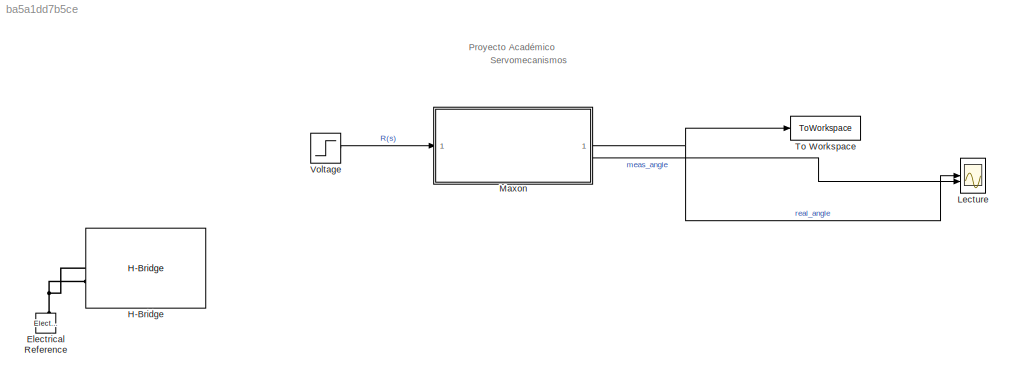
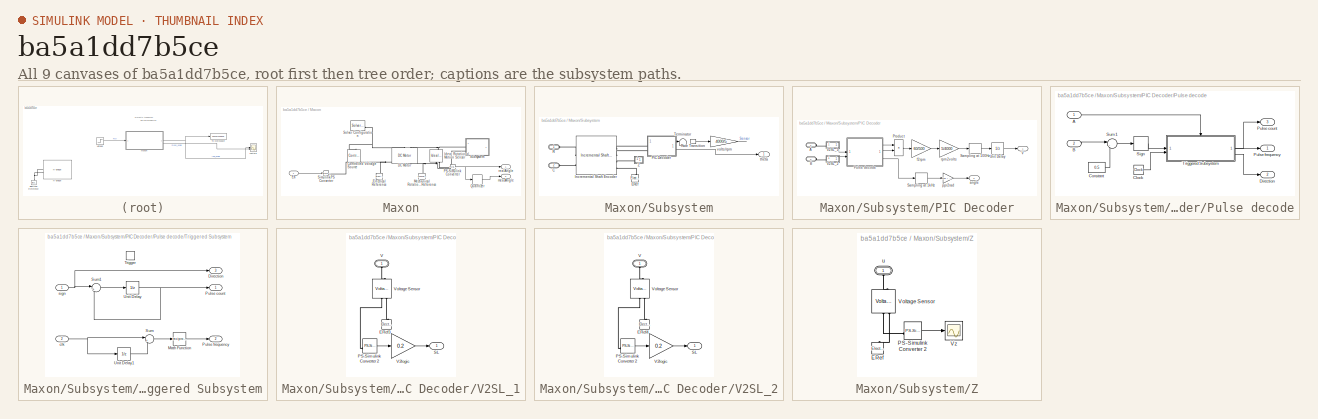
[diagram: thumbnail index - all 9 canvases of the model, root first then tree order]
MODEL slx_ba5a1dd7b5ce
KIND model
CONFIG AbsTol = auto
CONFIG EnableMultiTasking = off
CONFIG FixedStep = auto
CONFIG MaxStep = auto
CONFIG MinStep = auto
CONFIG RelTol = 1e-3
CONFIG SampleTimeConstraint = Unconstrained
CONFIG SolverName = VariableStepAuto
CONFIG StartTime = 0.0
CONFIG StopTime = 0.5
BLOCK [Reference] Electrical Reference  REF=fl_lib/Electrical/Electrical Elements/Electrical Reference
  Commented = on
  NameLocation = right
  SourceBlock = fl_lib/Electrical/Electrical Elements/Electrical Reference
  SourceType = Electrical Reference
BLOCK [Reference] H-Bridge  REF=ee_lib/Semiconductors &
Converters/Converters/H-Bridge
  Commented = on
  SourceBlock = ee_lib/Semiconductors &\nConverters/Converters/H-Bridge
  SourceType = H-Bridge
BLOCK [Scope] Lecture
  ActiveDisplayYMaximum = 74.098189046829177
  ActiveDisplayYMinimum = 72.021268968643184
  Floating = off
  GraphicalSettings = {"AxesScalingProperties":{"AlignXAxis":"Center","AlignYAxis":"Center","AutoScaleXAxisLimits":false,"AxesScaling":"Manual","AxesScalingNumUpdates":10,"ExpandOnly":true,"ScaleAxesLimitsAtStop":false,"XAxisDataRange":100,"YAxisDataRange":80},"Cursors":{"CursorChannels":["auto","auto"],"Enabled":false,"Horizontal":true,"LinkToWaveform":true,"LockSpacing":false,"ShowMeasurement":true,"ShowPanel":false,...<+2459ch>
  LayoutDimensionsString = [1,1]
  MultipleDisplayCache = [{"MaxYLimMag":160.074,"MaxYLimReal":74.098189046829177,"MinYLimMag":0,"MinYLimReal":72.021268968643184,"PlotAsMagnitudePhase":false,"ShowGrid":true,"ShowLegend":true,"Title":"%<SignalLabel>","YLabel":""}]
  NumInputPorts = 2
  ScopeFrameLocation = window
  ShowLegend = on
  WasSavedAsWebScope = on
  WindowPosition = [1.000000,1.000000,1512.000000,916.000000,]
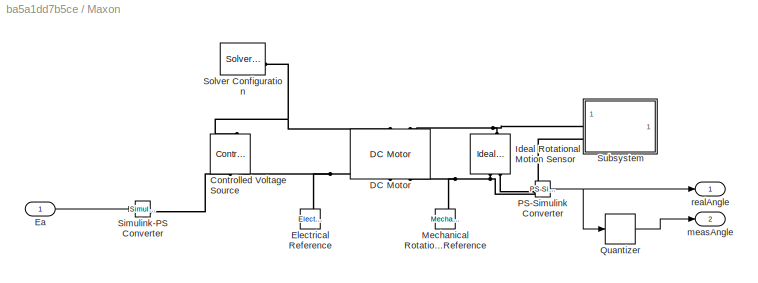
BLOCK [SubSystem] Maxon
BLOCK [Reference] Maxon/Controlled Voltage Source  REF=fl_lib/Electrical/Electrical Sources/Controlled Voltage
Source
  NameLocation = right
  SourceBlock = fl_lib/Electrical/Electrical Sources/Controlled Voltage\nSource
  SourceType = Controlled Voltage\nSource
BLOCK [Reference] Maxon/DC Motor  REF=ee_lib/Electromechanical/Brushed Motors/DC Motor
  NameLocation = right
  SourceBlock = ee_lib/Electromechanical/Brushed Motors/DC Motor
  SourceType = DC Motor
BLOCK [Inport] Maxon/Ea
BLOCK [Reference] Maxon/Electrical Reference  REF=fl_lib/Electrical/Electrical Elements/Electrical Reference
  NameLocation = right
  SourceBlock = fl_lib/Electrical/Electrical Elements/Electrical Reference
  SourceType = Electrical Reference
BLOCK [Reference] Maxon/Ideal Rotational Motion Sensor  REF=fl_lib/Mechanical/Mechanical Sensors/Ideal Rotational
Motion Sensor
  NameLocation = right
  SourceBlock = fl_lib/Mechanical/Mechanical Sensors/Ideal Rotational\nMotion Sensor
  SourceType = Ideal Rotational\nMotion Sensor
BLOCK [Reference] Maxon/Mechanical Rotational Reference  REF=fl_lib/Mechanical/Rotational Elements/Mechanical
Rotational Reference
  NameLocation = right
  SourceBlock = fl_lib/Mechanical/Rotational Elements/Mechanical\nRotational Reference
  SourceType = Mechanical\nRotational Reference
BLOCK [Reference] Maxon/PS-Simulink Converter  REF=nesl_utility/PS-Simulink
Converter
  SourceBlock = nesl_utility/PS-Simulink\nConverter
  SourceType = PS-Simulink\nConverter
BLOCK [Quantizer] Maxon/Quantizer
  QuantizationInterval = 1e-3
BLOCK [Reference] Maxon/Simulink-PS Converter  REF=nesl_utility/Simulink-PS
Converter
  SourceBlock = nesl_utility/Simulink-PS\nConverter
  SourceType = Simulink-PS\nConverter
BLOCK [Reference] Maxon/Solver Configuration  REF=nesl_utility/Solver
Configuration
  SourceBlock = nesl_utility/Solver\nConfiguration
  SourceType = Solver\nConfiguration
BLOCK [SubSystem] Maxon/Subsystem
  Commented = on
BLOCK [PMIOPort] Maxon/Subsystem/C
  Port = 2
  Side = Left
BLOCK [Reference] Maxon/Subsystem/ERef  REF=fl_lib/Electrical/Electrical Elements/Electrical Reference
  NameLocation = right
  SourceBlock = fl_lib/Electrical/Electrical Elements/Electrical Reference
  SourceType = Electrical Reference
BLOCK [Reference] Maxon/Subsystem/Incremental Shaft Encoder  REF=ee_lib/Sensors &
Transducers/Incremental Shaft
Encoder
  SourceBlock = ee_lib/Sensors &\nTransducers/Incremental Shaft\nEncoder
  SourceType = Incremental Shaft\nEncoder
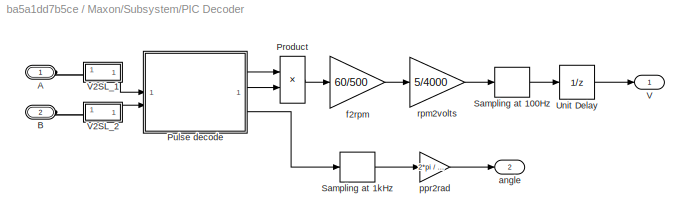
BLOCK [SubSystem] Maxon/Subsystem/PIC Decoder
BLOCK [PMIOPort] Maxon/Subsystem/PIC Decoder/A
  Side = Left
BLOCK [PMIOPort] Maxon/Subsystem/PIC Decoder/B
  Port = 2
  Side = Left
BLOCK [Product] Maxon/Subsystem/PIC Decoder/Product
  RndMeth = Zero
BLOCK [SubSystem] Maxon/Subsystem/PIC Decoder/Pulse decode
BLOCK [Inport] Maxon/Subsystem/PIC Decoder/Pulse decode/A
BLOCK [Inport] Maxon/Subsystem/PIC Decoder/Pulse decode/B
  Port = 2
BLOCK [Clock] Maxon/Subsystem/PIC Decoder/Pulse decode/Clock
BLOCK [Constant] Maxon/Subsystem/PIC Decoder/Pulse decode/Constant
  Value = 0.5
BLOCK [Outport] Maxon/Subsystem/PIC Decoder/Pulse decode/Direction
  Port = 2
  VectorParamsAs1DForOutWhenUnconnected = off
BLOCK [Outport] Maxon/Subsystem/PIC Decoder/Pulse decode/Pulse count
  Port = 3
  VectorParamsAs1DForOutWhenUnconnected = off
BLOCK [Outport] Maxon/Subsystem/PIC Decoder/Pulse decode/Pulse frequency
  VectorParamsAs1DForOutWhenUnconnected = off
BLOCK [Signum] Maxon/Subsystem/PIC Decoder/Pulse decode/Sign
BLOCK [Sum] Maxon/Subsystem/PIC Decoder/Pulse decode/Sum1
  Inputs = |-+
BLOCK [SubSystem] Maxon/Subsystem/PIC Decoder/Pulse decode/Triggered Subsystem
  TreatAsAtomicUnit = on
BLOCK [Outport] Maxon/Subsystem/PIC Decoder/Pulse decode/Triggered Subsystem/Direction
  InitialOutput = 0
  Port = 3
  VectorParamsAs1DForOutWhenUnconnected = off
BLOCK [Math] Maxon/Subsystem/PIC Decoder/Pulse decode/Triggered Subsystem/Math Function
  Operator = reciprocal
  SignedPower = on
BLOCK [Outport] Maxon/Subsystem/PIC Decoder/Pulse decode/Triggered Subsystem/Pulse count
  InitialOutput = 0
  VectorParamsAs1DForOutWhenUnconnected = off
BLOCK [Outport] Maxon/Subsystem/PIC Decoder/Pulse decode/Triggered Subsystem/Pulse frequency
  Port = 2
  VectorParamsAs1DForOutWhenUnconnected = off
BLOCK [Sum] Maxon/Subsystem/PIC Decoder/Pulse decode/Triggered Subsystem/Sum
  Inputs = |+-
BLOCK [Sum] Maxon/Subsystem/PIC Decoder/Pulse decode/Triggered Subsystem/Sum1
  Inputs = |++
BLOCK [TriggerPort] Maxon/Subsystem/PIC Decoder/Pulse decode/Triggered Subsystem/Trigger
  StatesWhenEnabling = held
  VariantControl = Variant
BLOCK [UnitDelay] Maxon/Subsystem/PIC Decoder/Pulse decode/Triggered Subsystem/Unit Delay
  HasFrameUpgradeWarning = on
  SampleTime = -1
BLOCK [UnitDelay] Maxon/Subsystem/PIC Decoder/Pulse decode/Triggered Subsystem/Unit Delay1
  HasFrameUpgradeWarning = on
  InitialCondition = -1e10
  SampleTime = -1
BLOCK [Inport] Maxon/Subsystem/PIC Decoder/Pulse decode/Triggered Subsystem/clk
  Port = 2
BLOCK [Inport] Maxon/Subsystem/PIC Decoder/Pulse decode/Triggered Subsystem/sign
BLOCK [ZeroOrderHold] Maxon/Subsystem/PIC Decoder/Sampling at 100Hz
  SampleTime = 0.001
BLOCK [ZeroOrderHold] Maxon/Subsystem/PIC Decoder/Sampling at 1kHz
  SampleTime = 0.001
BLOCK [UnitDelay] Maxon/Subsystem/PIC Decoder/Unit Delay
  HasFrameUpgradeWarning = on
  SampleTime = 0.001
BLOCK [Outport] Maxon/Subsystem/PIC Decoder/V
  VectorParamsAs1DForOutWhenUnconnected = off
BLOCK [SubSystem] Maxon/Subsystem/PIC Decoder/V2SL_1
BLOCK [Reference] Maxon/Subsystem/PIC Decoder/V2SL_1/ERef3  REF=fl_lib/Electrical/Electrical Elements/Electrical Reference
  NameLocation = right
  SourceBlock = fl_lib/Electrical/Electrical Elements/Electrical Reference
  SourceType = Electrical Reference
BLOCK [Reference] Maxon/Subsystem/PIC Decoder/V2SL_1/PS-Simulink Converter 2  REF=nesl_utility/PS-Simulink
Converter
  SourceBlock = nesl_utility/PS-Simulink\nConverter
  SourceType = PS-Simulink\nConverter
BLOCK [Outport] Maxon/Subsystem/PIC Decoder/V2SL_1/SL
  VectorParamsAs1DForOutWhenUnconnected = off
BLOCK [PMIOPort] Maxon/Subsystem/PIC Decoder/V2SL_1/V
  NameLocation = right
  Side = Left
BLOCK [Gain] Maxon/Subsystem/PIC Decoder/V2SL_1/V2logic
  Gain = 0.2
BLOCK [Reference] Maxon/Subsystem/PIC Decoder/V2SL_1/Voltage Sensor  REF=fl_lib/Electrical/Electrical Sensors/Voltage Sensor
  NameLocation = right
  SourceBlock = fl_lib/Electrical/Electrical Sensors/Voltage Sensor
  SourceType = Voltage Sensor
BLOCK [SubSystem] Maxon/Subsystem/PIC Decoder/V2SL_2
BLOCK [Reference] Maxon/Subsystem/PIC Decoder/V2SL_2/ERef4  REF=fl_lib/Electrical/Electrical Elements/Electrical Reference
  NameLocation = right
  SourceBlock = fl_lib/Electrical/Electrical Elements/Electrical Reference
  SourceType = Electrical Reference
BLOCK [Reference] Maxon/Subsystem/PIC Decoder/V2SL_2/PS-Simulink Converter 2  REF=nesl_utility/PS-Simulink
Converter
  SourceBlock = nesl_utility/PS-Simulink\nConverter
  SourceType = PS-Simulink\nConverter
BLOCK [Outport] Maxon/Subsystem/PIC Decoder/V2SL_2/SL
  VectorParamsAs1DForOutWhenUnconnected = off
BLOCK [PMIOPort] Maxon/Subsystem/PIC Decoder/V2SL_2/V
  NameLocation = right
  Side = Left
BLOCK [Gain] Maxon/Subsystem/PIC Decoder/V2SL_2/V2logic
  Gain = 0.2
BLOCK [Reference] Maxon/Subsystem/PIC Decoder/V2SL_2/Voltage Sensor  REF=fl_lib/Electrical/Electrical Sensors/Voltage Sensor
  NameLocation = right
  SourceBlock = fl_lib/Electrical/Electrical Sensors/Voltage Sensor
  SourceType = Voltage Sensor
BLOCK [Outport] Maxon/Subsystem/PIC Decoder/angle
  Port = 2
  VectorParamsAs1DForOutWhenUnconnected = off
BLOCK [Gain] Maxon/Subsystem/PIC Decoder/f2rpm
  Gain = 60/500
BLOCK [Gain] Maxon/Subsystem/PIC Decoder/ppr2rad
  Gain = 2*pi / 500
BLOCK [Gain] Maxon/Subsystem/PIC Decoder/rpm2volts
  Gain = 5/4000
BLOCK [PMIOPort] Maxon/Subsystem/R
  Side = Left
BLOCK [RateTransition] Maxon/Subsystem/Rate Transition
  Commented = on
BLOCK [Terminator] Maxon/Subsystem/Terminator
BLOCK [SubSystem] Maxon/Subsystem/Z
BLOCK [Reference] Maxon/Subsystem/Z/ERef  REF=fl_lib/Electrical/Electrical Elements/Electrical Reference
  NameLocation = right
  SourceBlock = fl_lib/Electrical/Electrical Elements/Electrical Reference
  SourceType = Electrical Reference
BLOCK [Reference] Maxon/Subsystem/Z/PS-Simulink Converter 2  REF=nesl_utility/PS-Simulink
Converter
  SourceBlock = nesl_utility/PS-Simulink\nConverter
  SourceType = PS-Simulink\nConverter
BLOCK [Reference] Maxon/Subsystem/Z/Voltage Sensor  REF=fl_lib/Electrical/Electrical Sensors/Voltage Sensor
  NameLocation = right
  SourceBlock = fl_lib/Electrical/Electrical Sensors/Voltage Sensor
  SourceType = Voltage Sensor
BLOCK [Scope] Maxon/Subsystem/Z/Vz
  ActiveDisplayYMaximum = 6
  ActiveDisplayYMinimum = -1
  DataLoggingDecimation = 1
  DataLoggingSaveFormat = Structure With Time
  DataLoggingVariableName = ScopeData6
  Floating = off
  GraphicalSettings = {"GraphicalSettings":{"LegacySettings":true,"Style":{"AxesScalingProperties":{"ScaleAxesLimitsAtStop":false},"Style":{"AxesColor":"[0 0 0]","ChannelNames":[""],"ColorOrder":"[1 1 0.0666666666666667;0.0745098039215686 0.623529411764706 1;1 0.411764705882353 0.16078431372549;0.392156862745098 0.831372549019608 0.0745098039215686;0.717647058823529 0.274509803921569 1;0.0588235294117647 1 1;1 0.074509...<+399ch>
  MultipleDisplayCache = [{"MaxYLimMag":10,"MaxYLimReal":6,"MinYLimMag":0,"MinYLimReal":-1,"PlotAsMagnitudePhase":false,"ShowGrid":true,"ShowLegend":false,"Title":"%<SignalLabel>","YLabel":""}]
  NumInputPorts = 1
  WasSavedAsWebScope = on
BLOCK [PMIOPort] Maxon/Subsystem/Z/u
  NameLocation = right
  Side = Left
BLOCK [Outport] Maxon/Subsystem/theta
BLOCK [Gain] Maxon/Subsystem/volts//rpm
  Commented = on
  Gain = 4000/5
  NameLocation = top
BLOCK [Outport] Maxon/measAngle
  Port = 2
BLOCK [Outport] Maxon/realAngle
BLOCK [ToWorkspace] To Workspace
  FixptAsFi = on
  MaxDataPoints = inf
  SampleTime = -1
  SaveFormat = Timeseries
  VariableName = simout
BLOCK [Step] Voltage
  After = 12
  SampleTime = 0
  Time = 0
ANNOTATION (root): Proyecto Académico
ANNOTATION (root): Servomecanismos
LINE Maxon/Ea:1 -> Maxon/Simulink-PS Converter:1
NET Maxon/PS-Simulink Converter:1 -> Maxon/Quantizer:1, Maxon/realAngle:1
LINE Maxon/Quantizer:1 -> Maxon/measAngle:1
LINE Maxon/Subsystem/PIC Decoder/Product:1 -> Maxon/Subsystem/PIC Decoder/f2rpm:1
LINE Maxon/Subsystem/PIC Decoder/Pulse decode/A:1 -> Maxon/Subsystem/PIC Decoder/Pulse decode/Triggered Subsystem:trigger
LINE Maxon/Subsystem/PIC Decoder/Pulse decode/B:1 -> Maxon/Subsystem/PIC Decoder/Pulse decode/Sum1:1
LINE Maxon/Subsystem/PIC Decoder/Pulse decode/Clock:1 -> Maxon/Subsystem/PIC Decoder/Pulse decode/Triggered Subsystem:2
LINE Maxon/Subsystem/PIC Decoder/Pulse decode/Constant:1 -> Maxon/Subsystem/PIC Decoder/Pulse decode/Sum1:2
LINE Maxon/Subsystem/PIC Decoder/Pulse decode/Sign:1 -> Maxon/Subsystem/PIC Decoder/Pulse decode/Triggered Subsystem:1
LINE Maxon/Subsystem/PIC Decoder/Pulse decode/Sum1:1 -> Maxon/Subsystem/PIC Decoder/Pulse decode/Sign:1
LINE Maxon/Subsystem/PIC Decoder/Pulse decode/Triggered Subsystem/Math Function:1 -> Maxon/Subsystem/PIC Decoder/Pulse decode/Triggered Subsystem/Pulse frequency:1
LINE Maxon/Subsystem/PIC Decoder/Pulse decode/Triggered Subsystem/Sum1:1 -> Maxon/Subsystem/PIC Decoder/Pulse decode/Triggered Subsystem/Unit Delay:1
LINE Maxon/Subsystem/PIC Decoder/Pulse decode/Triggered Subsystem/Sum:1 -> Maxon/Subsystem/PIC Decoder/Pulse decode/Triggered Subsystem/Math Function:1
LINE Maxon/Subsystem/PIC Decoder/Pulse decode/Triggered Subsystem/Unit Delay1:1 -> Maxon/Subsystem/PIC Decoder/Pulse decode/Triggered Subsystem/Sum:2
NET Maxon/Subsystem/PIC Decoder/Pulse decode/Triggered Subsystem/Unit Delay:1 -> Maxon/Subsystem/PIC Decoder/Pulse decode/Triggered Subsystem/Pulse count:1, Maxon/Subsystem/PIC Decoder/Pulse decode/Triggered Subsystem/Sum1:2
NET Maxon/Subsystem/PIC Decoder/Pulse decode/Triggered Subsystem/clk:1 -> Maxon/Subsystem/PIC Decoder/Pulse decode/Triggered Subsystem/Sum:1, Maxon/Subsystem/PIC Decoder/Pulse decode/Triggered Subsystem/Unit Delay1:1
NET Maxon/Subsystem/PIC Decoder/Pulse decode/Triggered Subsystem/sign:1 -> Maxon/Subsystem/PIC Decoder/Pulse decode/Triggered Subsystem/Direction:1, Maxon/Subsystem/PIC Decoder/Pulse decode/Triggered Subsystem/Sum1:1
LINE Maxon/Subsystem/PIC Decoder/Pulse decode/Triggered Subsystem:1 -> Maxon/Subsystem/PIC Decoder/Pulse decode/Pulse count:1
LINE Maxon/Subsystem/PIC Decoder/Pulse decode/Triggered Subsystem:2 -> Maxon/Subsystem/PIC Decoder/Pulse decode/Pulse frequency:1
LINE Maxon/Subsystem/PIC Decoder/Pulse decode/Triggered Subsystem:3 -> Maxon/Subsystem/PIC Decoder/Pulse decode/Direction:1
LINE Maxon/Subsystem/PIC Decoder/Pulse decode:1 -> Maxon/Subsystem/PIC Decoder/Product:1
LINE Maxon/Subsystem/PIC Decoder/Pulse decode:2 -> Maxon/Subsystem/PIC Decoder/Product:2
LINE Maxon/Subsystem/PIC Decoder/Pulse decode:3 -> Maxon/Subsystem/PIC Decoder/Sampling at 1kHz:1
LINE Maxon/Subsystem/PIC Decoder/Sampling at 100Hz:1 -> Maxon/Subsystem/PIC Decoder/Unit Delay:1
LINE Maxon/Subsystem/PIC Decoder/Sampling at 1kHz:1 -> Maxon/Subsystem/PIC Decoder/ppr2rad:1
LINE Maxon/Subsystem/PIC Decoder/Unit Delay:1 -> Maxon/Subsystem/PIC Decoder/V:1
LINE Maxon/Subsystem/PIC Decoder/V2SL_1/PS-Simulink Converter 2:1 -> Maxon/Subsystem/PIC Decoder/V2SL_1/V2logic:1
LINE Maxon/Subsystem/PIC Decoder/V2SL_1/V2logic:1 -> Maxon/Subsystem/PIC Decoder/V2SL_1/SL:1
LINE Maxon/Subsystem/PIC Decoder/V2SL_1:1 -> Maxon/Subsystem/PIC Decoder/Pulse decode:1
LINE Maxon/Subsystem/PIC Decoder/V2SL_2/PS-Simulink Converter 2:1 -> Maxon/Subsystem/PIC Decoder/V2SL_2/V2logic:1
LINE Maxon/Subsystem/PIC Decoder/V2SL_2/V2logic:1 -> Maxon/Subsystem/PIC Decoder/V2SL_2/SL:1
LINE Maxon/Subsystem/PIC Decoder/V2SL_2:1 -> Maxon/Subsystem/PIC Decoder/Pulse decode:2
LINE Maxon/Subsystem/PIC Decoder/f2rpm:1 -> Maxon/Subsystem/PIC Decoder/rpm2volts:1
LINE Maxon/Subsystem/PIC Decoder/ppr2rad:1 -> Maxon/Subsystem/PIC Decoder/angle:1
LINE Maxon/Subsystem/PIC Decoder/rpm2volts:1 -> Maxon/Subsystem/PIC Decoder/Sampling at 100Hz:1
LINE Maxon/Subsystem/PIC Decoder:1 -> Maxon/Subsystem/Terminator:1
LINE Maxon/Subsystem/PIC Decoder:2 -> Maxon/Subsystem/theta:1
LINE Maxon/Subsystem/Rate Transition:1 -> Maxon/Subsystem/volts//rpm:1
LINE Maxon/Subsystem/Z/PS-Simulink Converter 2:1 -> Maxon/Subsystem/Z/Vz:1
NET Maxon:1 -> Lecture:1, To Workspace:1
LINE Maxon:2 -> Lecture:2
LINE Voltage:1 -> Maxon:1
PNET net1: Electrical Reference:LConn1 -- H-Bridge:LConn2 -- H-Bridge:LConn3
PNET net2: Maxon/Controlled Voltage Source:LConn1 -- Maxon/DC Motor:LConn1 -- Maxon/Solver Configuration:RConn1
PLINE Maxon/Controlled Voltage Source:RConn1 -- Maxon/Simulink-PS Converter:RConn1
PNET net3: Maxon/Controlled Voltage Source:RConn2 -- Maxon/DC Motor:RConn1 -- Maxon/Electrical Reference:LConn1
PNET net4: Maxon/DC Motor:LConn2 -- Maxon/Ideal Rotational Motion Sensor:LConn1 -- Maxon/Subsystem:LConn1
PNET net5: Maxon/DC Motor:RConn2 -- Maxon/Ideal Rotational Motion Sensor:RConn1 -- Maxon/Mechanical Rotational Reference:LConn1 -- Maxon/Subsystem:LConn2
PLINE Maxon/Ideal Rotational Motion Sensor:RConn2 -- Maxon/PS-Simulink Converter:LConn1
PLINE Maxon/Subsystem/C:RConn1 -- Maxon/Subsystem/Incremental Shaft Encoder:LConn2
PLINE Maxon/Subsystem/ERef:LConn1 -- Maxon/Subsystem/Incremental Shaft Encoder:RConn4
PLINE Maxon/Subsystem/Incremental Shaft Encoder:LConn1 -- Maxon/Subsystem/R:RConn1
PLINE Maxon/Subsystem/Incremental Shaft Encoder:RConn1 -- Maxon/Subsystem/PIC Decoder:LConn1
PLINE Maxon/Subsystem/Incremental Shaft Encoder:RConn2 -- Maxon/Subsystem/PIC Decoder:LConn2
PLINE Maxon/Subsystem/Incremental Shaft Encoder:RConn3 -- Maxon/Subsystem/Z:LConn1
PLINE Maxon/Subsystem/PIC Decoder/A:RConn1 -- Maxon/Subsystem/PIC Decoder/V2SL_1:LConn1
PLINE Maxon/Subsystem/PIC Decoder/B:RConn1 -- Maxon/Subsystem/PIC Decoder/V2SL_2:LConn1
PLINE Maxon/Subsystem/PIC Decoder/V2SL_1/ERef3:LConn1 -- Maxon/Subsystem/PIC Decoder/V2SL_1/Voltage Sensor:RConn2
PLINE Maxon/Subsystem/PIC Decoder/V2SL_1/PS-Simulink Converter 2:LConn1 -- Maxon/Subsystem/PIC Decoder/V2SL_1/Voltage Sensor:RConn1
PLINE Maxon/Subsystem/PIC Decoder/V2SL_1/V:RConn1 -- Maxon/Subsystem/PIC Decoder/V2SL_1/Voltage Sensor:LConn1
PLINE Maxon/Subsystem/PIC Decoder/V2SL_2/ERef4:LConn1 -- Maxon/Subsystem/PIC Decoder/V2SL_2/Voltage Sensor:RConn2
PLINE Maxon/Subsystem/PIC Decoder/V2SL_2/PS-Simulink Converter 2:LConn1 -- Maxon/Subsystem/PIC Decoder/V2SL_2/Voltage Sensor:RConn1
PLINE Maxon/Subsystem/PIC Decoder/V2SL_2/V:RConn1 -- Maxon/Subsystem/PIC Decoder/V2SL_2/Voltage Sensor:LConn1
PLINE Maxon/Subsystem/Z/ERef:LConn1 -- Maxon/Subsystem/Z/Voltage Sensor:RConn2
PLINE Maxon/Subsystem/Z/PS-Simulink Converter 2:LConn1 -- Maxon/Subsystem/Z/Voltage Sensor:RConn1
PLINE Maxon/Subsystem/Z/Voltage Sensor:LConn1 -- Maxon/Subsystem/Z/u:RConn1
note: NET lines group one-source signal fan-out (src -> all destinations, sorted); 1:1 wires keep LINE; PNET lines group multi-terminal physical nets as a canonical sorted terminal list (undirected conserving connections); 2-terminal nets keep the pairwise PLINE form
